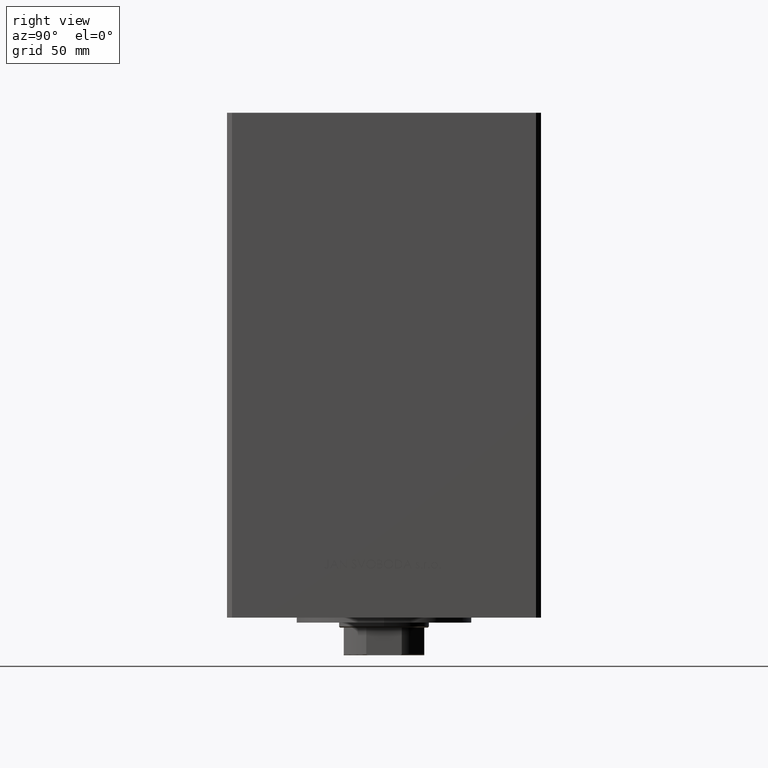
[diagram: clean part render]
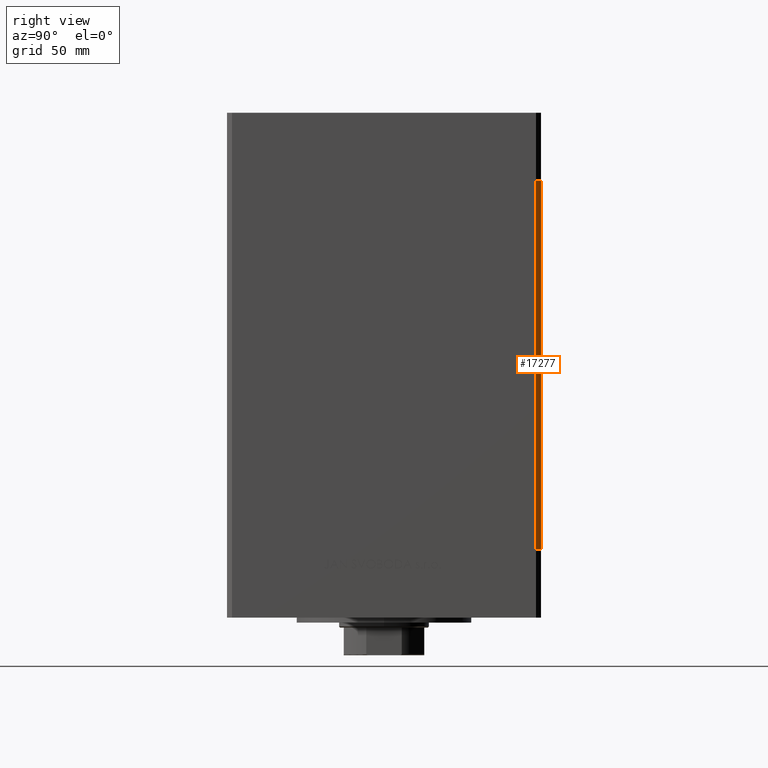
[diagram: same view with one face highlighted and labeled with its STEP entity id]
A machine part, right view. The second image highlights one B-rep face of the part: STEP entity #17277.
In plain terms, the highlighted planar face has unit normal (0.7071, 0.7071, 0).
Its self-contained STEP definition (entity closure, byte-faithful):
#412 = LINE ( 'NONE', #15508, #20179 ) ;
#742 = DIRECTION ( 'NONE',  ( -0.7071067811865474617, 0.7071067811865474617, 0.000000000000000000 ) ) ;
#825 = VECTOR ( 'NONE', #3684, 1000.000000000000114 ) ;
#3684 = DIRECTION ( 'NONE',  ( 0.7071067811865474617, -0.7071067811865474617, 0.000000000000000000 ) ) ;
#5264 = LINE ( 'NONE', #20361, #13829 ) ;
#5964 = VERTEX_POINT ( 'NONE', #27690 ) ;
#7513 = EDGE_CURVE ( 'NONE', #19163, #43258, #29072, .T. ) ;
#7928 = CARTESIAN_POINT ( 'NONE',  ( 75.00000000000001421, 60.50000000000000000, 147.0000000000000000 ) ) ;
#8667 = PLANE ( 'NONE',  #46688 ) ;
#9970 = ORIENTED_EDGE ( 'NONE', *, *, #15565, .T. ) ;
#12520 = CARTESIAN_POINT ( 'NONE',  ( 73.00000000000001421, 62.50000000000000000, 0.000000000000000000 ) ) ;
#13829 = VECTOR ( 'NONE', #23594, 1000.000000000000000 ) ;
#15291 = CARTESIAN_POINT ( 'NONE',  ( 73.00000000000001421, 62.50000000000000000, 147.0000000000000000 ) ) ;
#15508 = CARTESIAN_POINT ( 'NONE',  ( 73.00000000000001421, 62.50000000000000000, 0.000000000000000000 ) ) ;
#15565 = EDGE_CURVE ( 'NONE', #5964, #19163, #19511, .T. ) ;
#16816 = DIRECTION ( 'NONE',  ( 0.7071067811865475727, 0.7071067811865475727, -0.000000000000000000 ) ) ;
#17277 = ADVANCED_FACE ( 'NONE', ( #20543 ), #8667, .T. ) ;
#19163 = VERTEX_POINT ( 'NONE', #7928 ) ;
#19278 = ORIENTED_EDGE ( 'NONE', *, *, #7513, .T. ) ;
#19413 = ORIENTED_EDGE ( 'NONE', *, *, #30085, .F. ) ;
#19511 = LINE ( 'NONE', #15291, #825 ) ;
#20179 = VECTOR ( 'NONE', #42727, 1000.000000000000114 ) ;
#20361 = CARTESIAN_POINT ( 'NONE',  ( 73.00000000000001421, 62.50000000000000000, 147.0000000000000000 ) ) ;
#20543 = FACE_OUTER_BOUND ( 'NONE', #46185, .T. ) ;
#23594 = DIRECTION ( 'NONE',  ( -0.000000000000000000, -0.000000000000000000, -1.000000000000000000 ) ) ;
#23762 = ORIENTED_EDGE ( 'NONE', *, *, #31580, .F. ) ;
#23767 = CARTESIAN_POINT ( 'NONE',  ( 73.00000000000001421, 62.50000000000000000, 147.0000000000000000 ) ) ;
#26696 = VECTOR ( 'NONE', #36731, 1000.000000000000000 ) ;
#27690 = CARTESIAN_POINT ( 'NONE',  ( 73.00000000000001421, 62.50000000000000000, 147.0000000000000000 ) ) ;
#28075 = VERTEX_POINT ( 'NONE', #12520 ) ;
#29072 = LINE ( 'NONE', #40433, #26696 ) ;
#30085 = EDGE_CURVE ( 'NONE', #5964, #28075, #5264, .T. ) ;
#31580 = EDGE_CURVE ( 'NONE', #28075, #43258, #412, .T. ) ;
#36731 = DIRECTION ( 'NONE',  ( -0.000000000000000000, -0.000000000000000000, -1.000000000000000000 ) ) ;
#40433 = CARTESIAN_POINT ( 'NONE',  ( 75.00000000000001421, 60.50000000000000000, 147.0000000000000000 ) ) ;
#42727 = DIRECTION ( 'NONE',  ( 0.7071067811865474617, -0.7071067811865474617, 0.000000000000000000 ) ) ;
#43258 = VERTEX_POINT ( 'NONE', #45034 ) ;
#45034 = CARTESIAN_POINT ( 'NONE',  ( 75.00000000000001421, 60.50000000000000000, 0.000000000000000000 ) ) ;
#46185 = EDGE_LOOP ( 'NONE', ( #23762, #19413, #9970, #19278 ) ) ;
#46688 = AXIS2_PLACEMENT_3D ( 'NONE', #23767, #16816, #742 ) ;